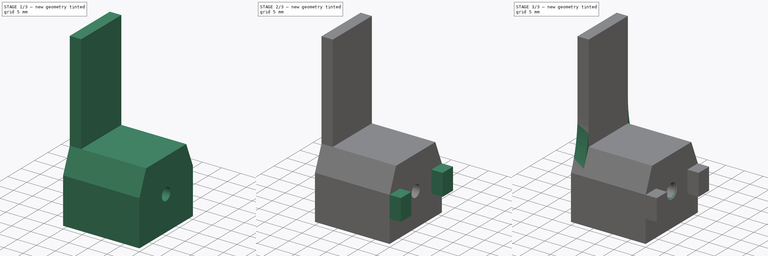
[diagram: build sequence overview — one tinted view per stage of 3, left to right]
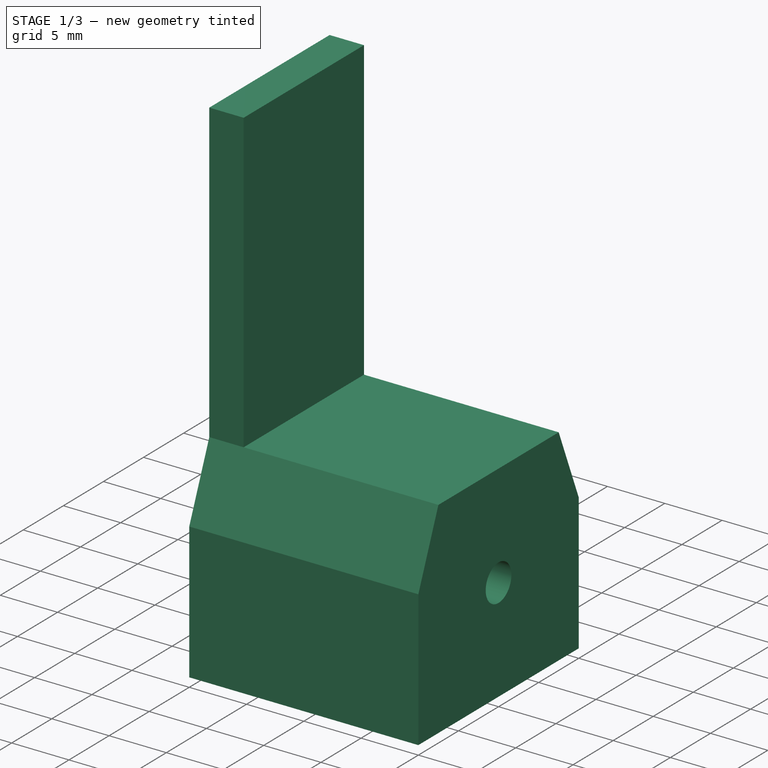
[diagram: stage 1 of 3 — iso view after this stage's code; geometry added in this stage tinted green]
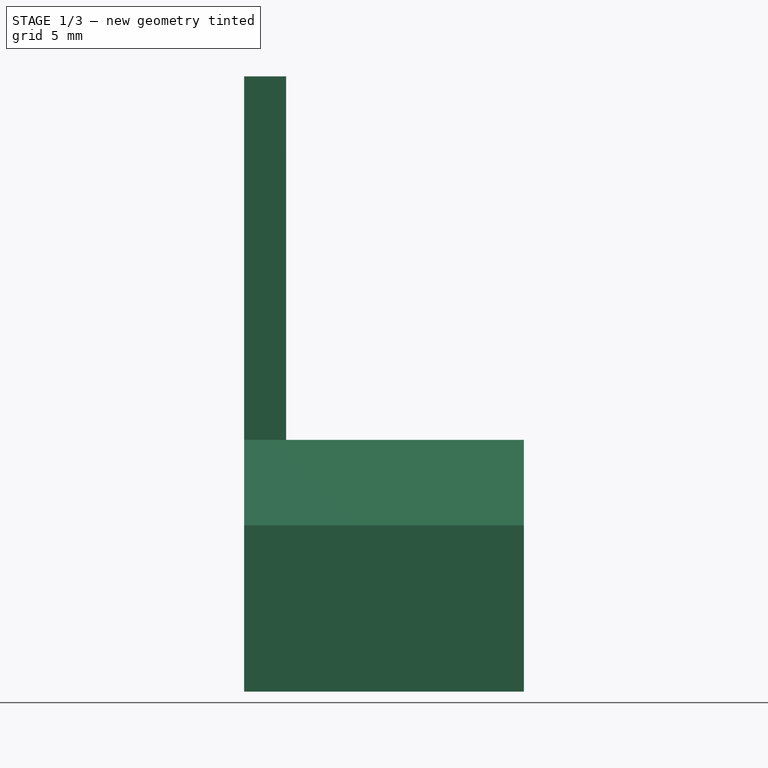
[diagram: stage 1 of 3 — front view after this stage's code; geometry added in this stage tinted green]
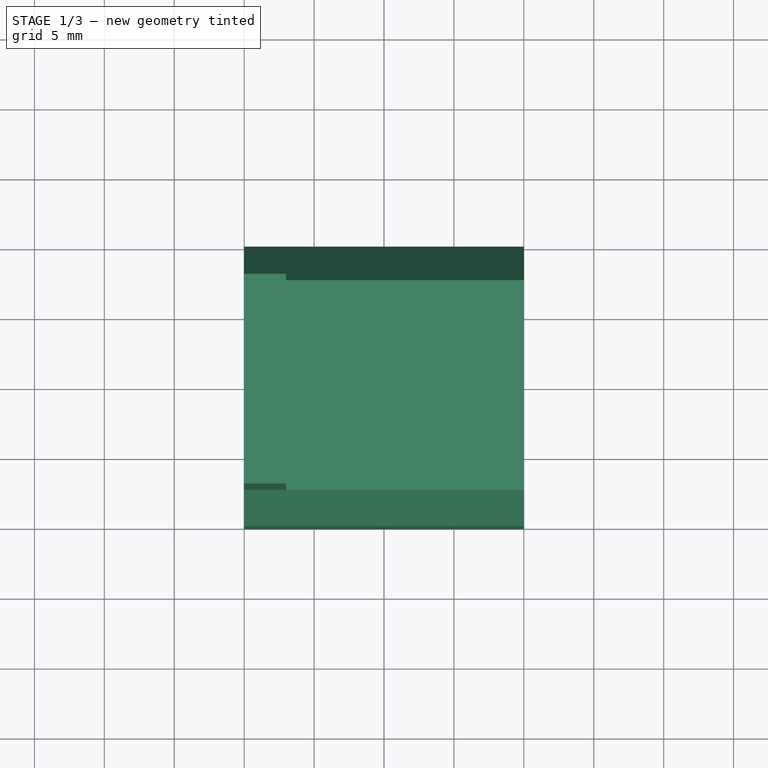
[diagram: stage 1 of 3 — top view after this stage's code; geometry added in this stage tinted green]
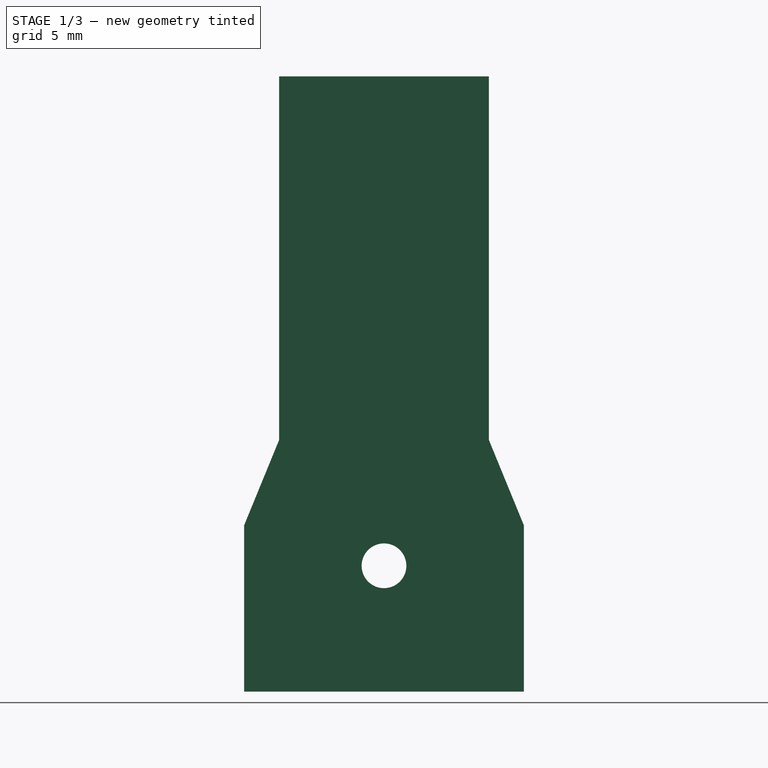
[diagram: stage 1 of 3 — right view after this stage's code; geometry added in this stage tinted green]
FCSTD DOCUMENT  (FreeCAD 0.22R38314 (Git))
Label: Voron_SpringPlate_Back
License: All rights reserved
LicenseURL: https://en.wikipedia.org/wiki/All_rights_reserved
objects: PartDesign::Pad×3, Sketcher::SketchObject×1, PartDesign::Fillet×1, PartDesign::Chamfer×1, PartDesign::Body×1
note: 17 computed .brp shape members not serialized (recipe doc carries the construction recipe); baked Part::Feature solids carry a one-line shape summary decoded from their .brp

FEATURE [Sketcher::SketchObject] Sketch
  AttachmentSupport = -> [YZ_Plane]
  FullyConstrained = true
  MapMode = 5
  Placement = pos=(0,0,0) rot=(0.57735,0.57735,0.57735;2.0944rad)
  sketch-geometry (21):
    g0: Circle CenterX=0 CenterY=0 CenterZ=0 NormalX=0 NormalY=0 NormalZ=1 AngleXU=0 Radius=1.6
    g1: LineSegment StartX=-10 StartY=-9 StartZ=0 EndX=0 EndY=-9 EndZ=0
    g2: LineSegment StartX=0 StartY=-9 StartZ=0 EndX=10 EndY=-9 EndZ=0
    g3: LineSegment StartX=-10 StartY=-9 StartZ=0 EndX=-10 EndY=-2.9 EndZ=0
    g4: LineSegment StartX=-7.5 StartY=9 StartZ=0 EndX=-7.5 EndY=35 EndZ=0
    g5: LineSegment StartX=7.5 StartY=35 StartZ=0 EndX=7.5 EndY=9 EndZ=0
    g6: LineSegment StartX=10 StartY=-2.9 StartZ=0 EndX=10 EndY=-9 EndZ=0
    g7: LineSegment StartX=7.5 StartY=35 StartZ=0 EndX=0 EndY=35 EndZ=0
    g8: LineSegment StartX=0 StartY=35 StartZ=0 EndX=-7.5 EndY=35 EndZ=0
    g9: LineSegment StartX=10 StartY=-2.9 StartZ=0 EndX=6 EndY=-2.9 EndZ=0
    g10: LineSegment StartX=6 StartY=-2.9 StartZ=0 EndX=6 EndY=0 EndZ=0
    g11: LineSegment StartX=6 StartY=0 StartZ=0 EndX=6 EndY=2.9 EndZ=0
    g12: LineSegment StartX=6 StartY=2.9 StartZ=0 EndX=10 EndY=2.9 EndZ=0
    g13: LineSegment StartX=10 StartY=2.9 StartZ=0 EndX=10 EndY=-2.9 EndZ=0
    g14: LineSegment StartX=10 StartY=2.9 StartZ=0 EndX=7.5 EndY=9 EndZ=0
    g15: LineSegment StartX=-10 StartY=-2.9 StartZ=0 EndX=-6 EndY=-2.9 EndZ=0
    g16: LineSegment StartX=-6 StartY=-2.9 StartZ=0 EndX=-6 EndY=2.9 EndZ=0
    g17: LineSegment StartX=-6 StartY=2.9 StartZ=0 EndX=-10 EndY=2.9 EndZ=0
    g18: LineSegment StartX=-10 StartY=2.9 StartZ=0 EndX=-7.5 EndY=9 EndZ=0
    g19: LineSegment StartX=-10 StartY=2.9 StartZ=0 EndX=-10 EndY=-2.9 EndZ=0
    g20: LineSegment StartX=-7.5 StartY=9 StartZ=0 EndX=7.5 EndY=9 EndZ=0
  constraints (59):
    c: Coincident(g0,g-1)
    c: Diameter(g0) = 3.2
    c: DistanceX(g1,g2) = 20
    c: Horizontal(g1)
    c: Coincident(g2,g1)
    c: Horizontal(g2)
    c: Equal(g1,g2)
    c: PointOnObject(g1,g-2)
    c: DistanceY(g2,g5) = 44
    c: DistanceY(g1,g0) = 9
    c: Coincident(g3,g1)
    c: Vertical(g3)
    c: Vertical(g4)
    c: Vertical(g5)
    c: Coincident(g6,g2)
    c: Vertical(g6)
    c: Distance(g5,g4) = 15
    c: Coincident(g7,g5)
    c: Horizontal(g7)
    c: Coincident(g8,g7)
    c: Coincident(g8,g4)
    c: Horizontal(g8)
    c: Equal(g8,g7)
    c: PointOnObject(g7,g-2)
    c: Horizontal(g4,g5)
    c: Horizontal(g3,g6)
    c: Coincident(g9,g6)
    c: Horizontal(g9)
    c: Coincident(g10,g9)
    c: PointOnObject(g10,g-1)
    c: Vertical(g10)
    c: Coincident(g11,g10)
    c: Vertical(g11)
    c: Coincident(g12,g11)
    c: Horizontal(g12)
    c: Coincident(g13,g12)
    c: Coincident(g13,g6)
    c: Vertical(g13)
    c: Coincident(g14,g12)
    c: Coincident(g14,g5)
    c: Equal(g10,g11)
    c: DistanceY(g6,g12) = 5.8
    c: Coincident(g15,g3)
    c: Horizontal(g15)
    c: Coincident(g16,g15)
    c: Vertical(g16)
    c: Horizontal(g17)
    c: Coincident(g18,g17)
    c: Coincident(g18,g4)
    c: Coincident(g19,g17)
    c: Coincident(g19,g3)
    c: Vertical(g19)
    c: Coincident(g16,g17)
    c: DistanceX(g15,g15) = 4
    c: Equal(g9,g15)
    c: Horizontal(g16,g11)
    c: DistanceY(g1,g4) = 18
    c: Coincident(g20,g4)
    c: Coincident(g20,g5)
FEATURE [PartDesign::Pad] Pad
  Direction = (1,0,0)
  Length = 3
  Length2 = 10
  Placement = pos=(0,0,0) rot=(1,1,1;2.0944rad)
  Profile = -> Sketch [Edge9,Vertex8,Edge7,Edge6,Edge2,Edge20,Edge19,Edge18,Edge17,Edge16,Edge15,Edge10,Edge8,Edge1]
  ReferenceAxis = -> Sketch [N_Axis]
  Refine = true
  Suppressed = false
  Type = 0
FEATURE [PartDesign::Pad] Pad001
  BaseFeature = -> Pad
  Direction = (1,0,0)
  Length = 20
  Length2 = 10
  Placement = pos=(0,0,0) rot=(1,1,1;2.0944rad)
  Profile = -> Sketch [Edge8,Edge7,Edge6,Edge2,Edge21,Edge16,Edge15,Edge10,Edge9,Edge1]
  ReferenceAxis = -> Sketch [N_Axis]
  Refine = true
  Suppressed = false
  Type = 0
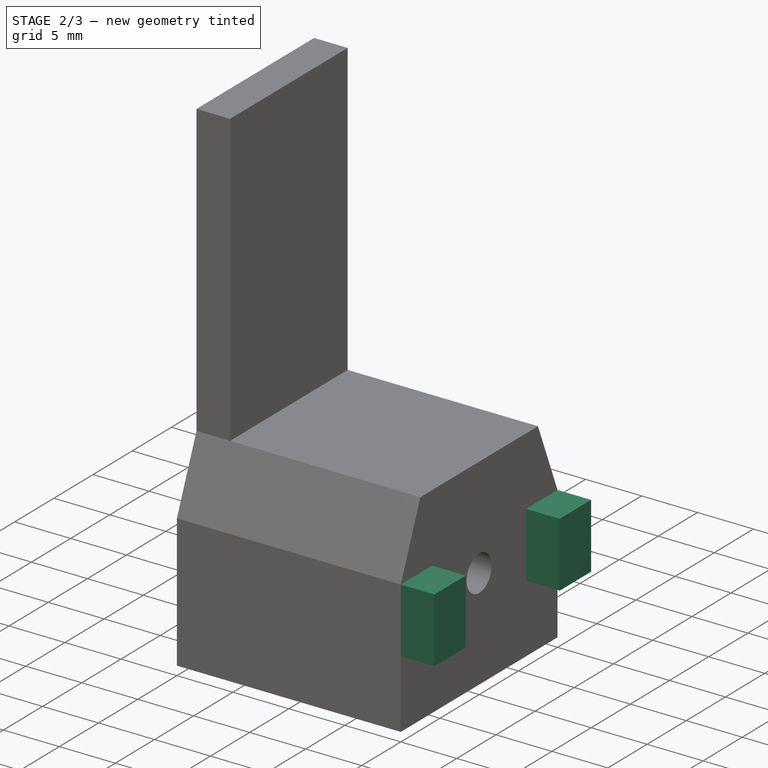
[diagram: stage 2 of 3 — iso view after this stage's code; geometry added in this stage tinted green]
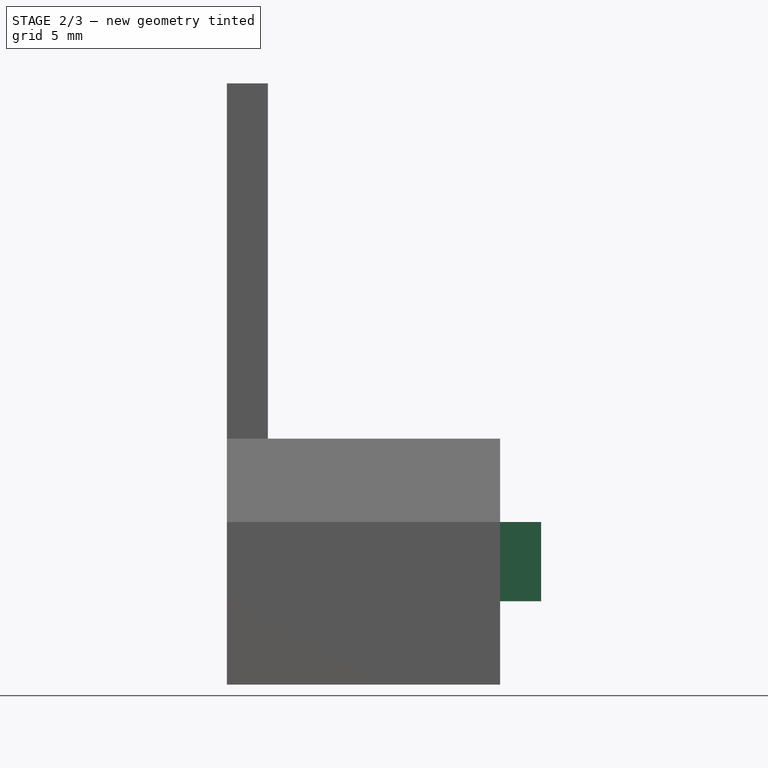
[diagram: stage 2 of 3 — front view after this stage's code; geometry added in this stage tinted green]
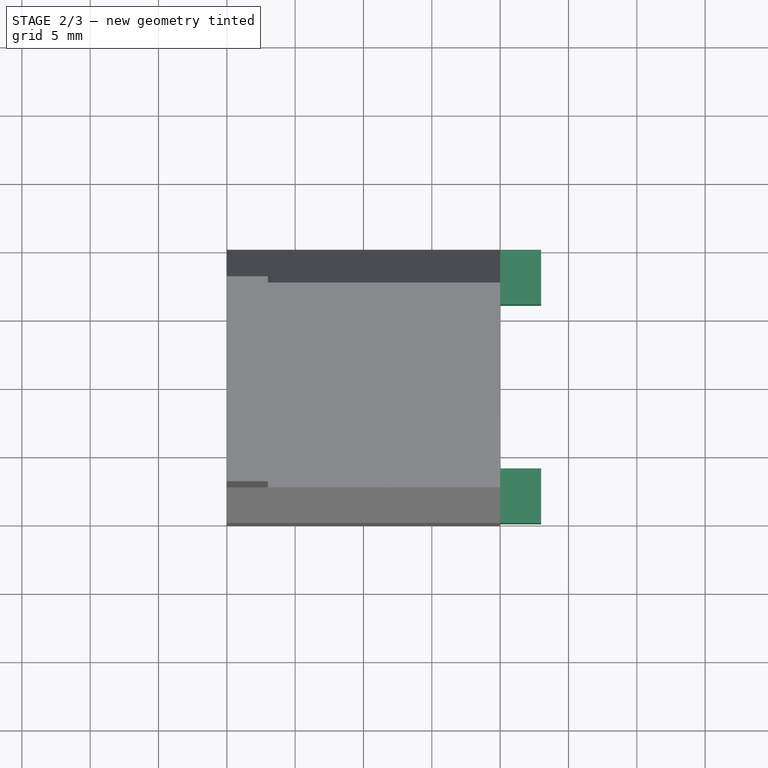
[diagram: stage 2 of 3 — top view after this stage's code; geometry added in this stage tinted green]
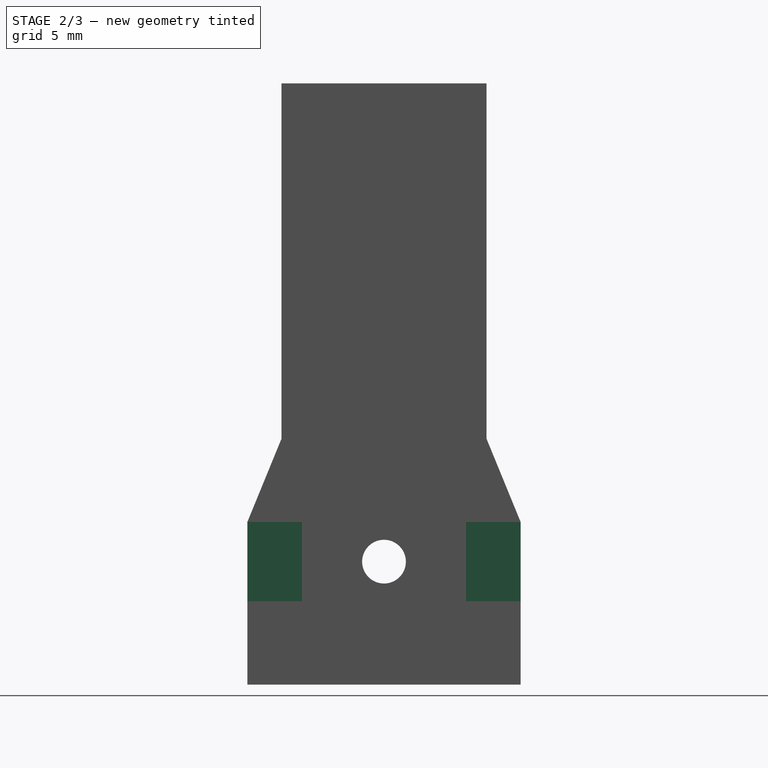
[diagram: stage 2 of 3 — right view after this stage's code; geometry added in this stage tinted green]
FEATURE [PartDesign::Pad] Pad002
  BaseFeature = -> Pad001
  Direction = (1,0,0)
  Length = 23
  Length2 = 10
  Placement = pos=(0,0,0) rot=(1,1,1;2.0944rad)
  Profile = -> Sketch [Edge11,Edge15,Edge14,Edge13,Edge12,Edge3,Edge4,Edge5,Edge6]
  ReferenceAxis = -> Sketch [N_Axis]
  Refine = true
  Suppressed = false
  Type = 0
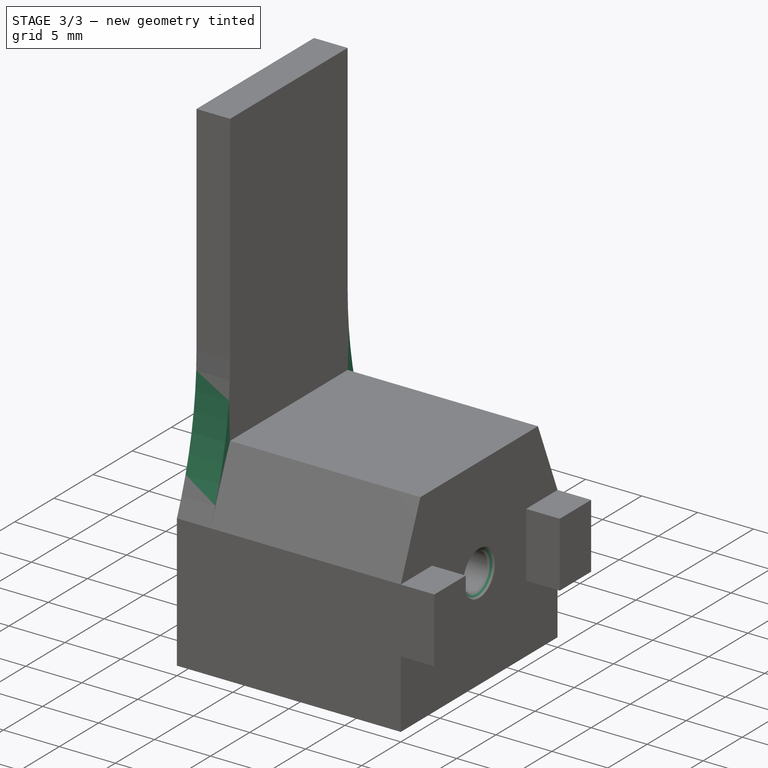
[diagram: stage 3 of 3 — iso view after this stage's code; geometry added in this stage tinted green]
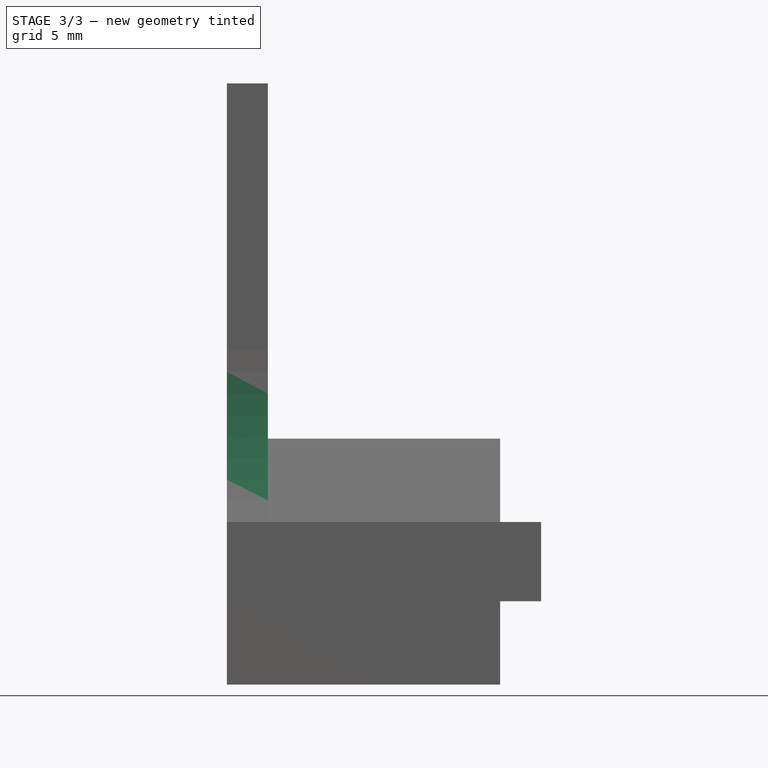
[diagram: stage 3 of 3 — front view after this stage's code; geometry added in this stage tinted green]
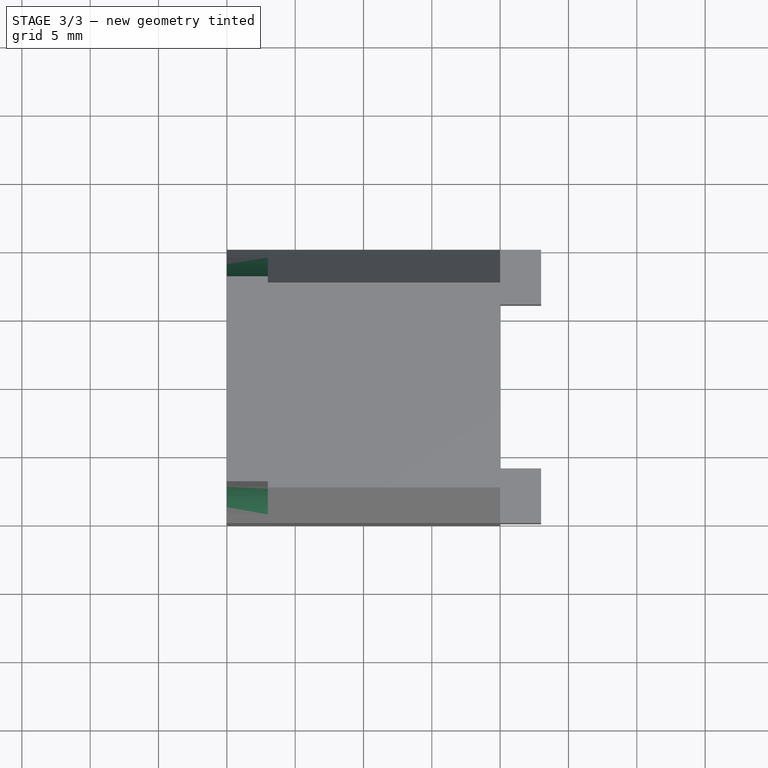
[diagram: stage 3 of 3 — top view after this stage's code; geometry added in this stage tinted green]
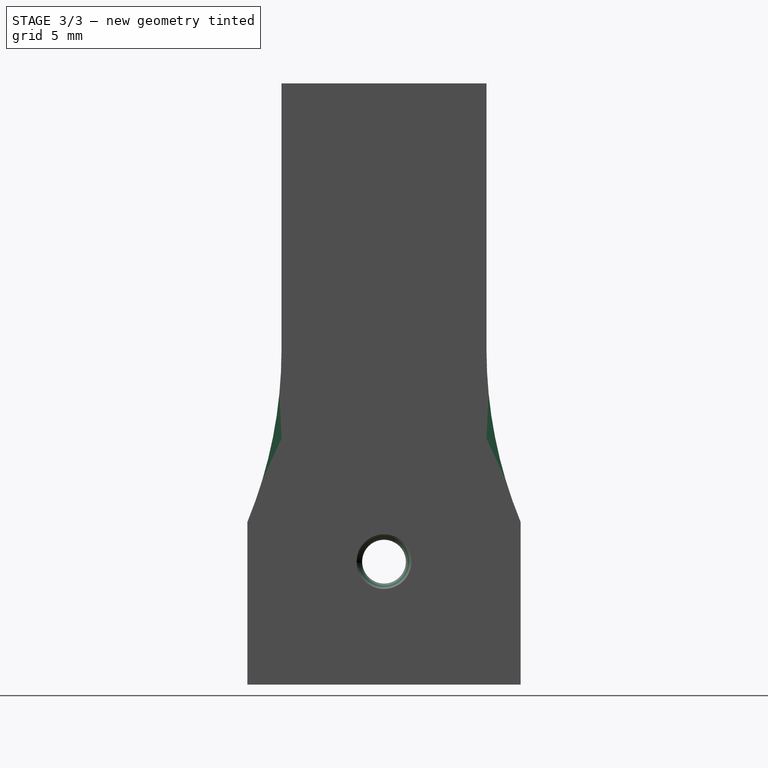
[diagram: stage 3 of 3 — right view after this stage's code; geometry added in this stage tinted green]
FEATURE [PartDesign::Fillet] Fillet
  Base = -> Pad002 [Edge2,Edge14]
  BaseFeature = -> Pad002
  Placement = pos=(0,0,0) rot=(1,1,1;2.0944rad)
  Radius = 33
  Refine = true
  SupportTransform = false
  Suppressed = false
  UseAllEdges = false
FEATURE [PartDesign::Chamfer] Chamfer
  Angle = 45
  Base = -> Fillet [Edge43,Edge14]
  BaseFeature = -> Fillet
  ChamferType = 0
  FlipDirection = false
  Placement = pos=(0,0,0) rot=(1,1,1;2.0944rad)
  Refine = true
  Size = 0.4
  Size2 = 1
  SupportTransform = false
  Suppressed = false
  UseAllEdges = false
FEATURE [PartDesign::Body] Body
  AllowCompound = false
  Group = -> [Sketch,Pad,Pad001,Pad002,Fillet,Chamfer]
  Origin = -> Origin
  Tip = -> Chamfer
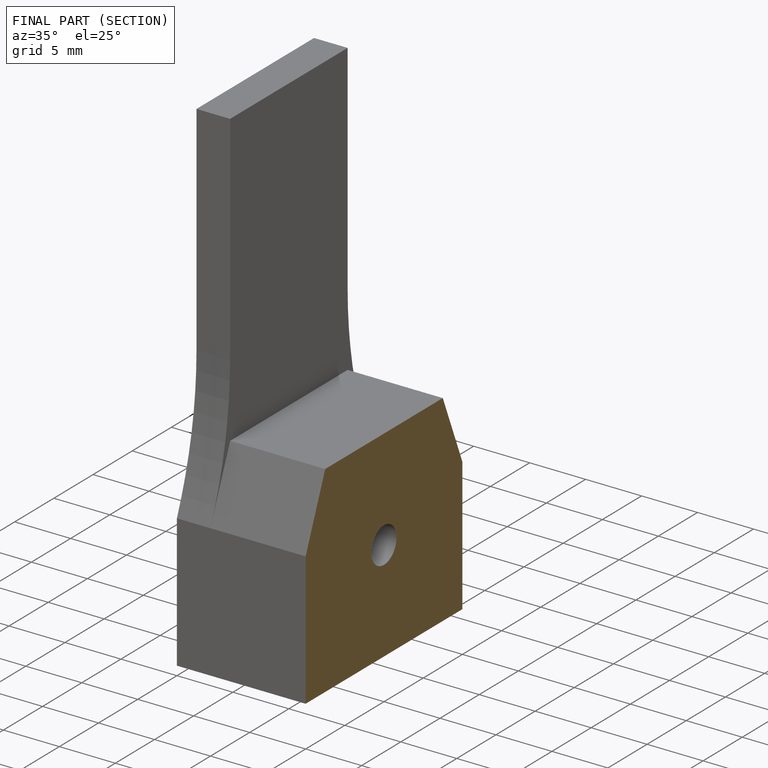
[diagram: finished part — half-section view (interior)]
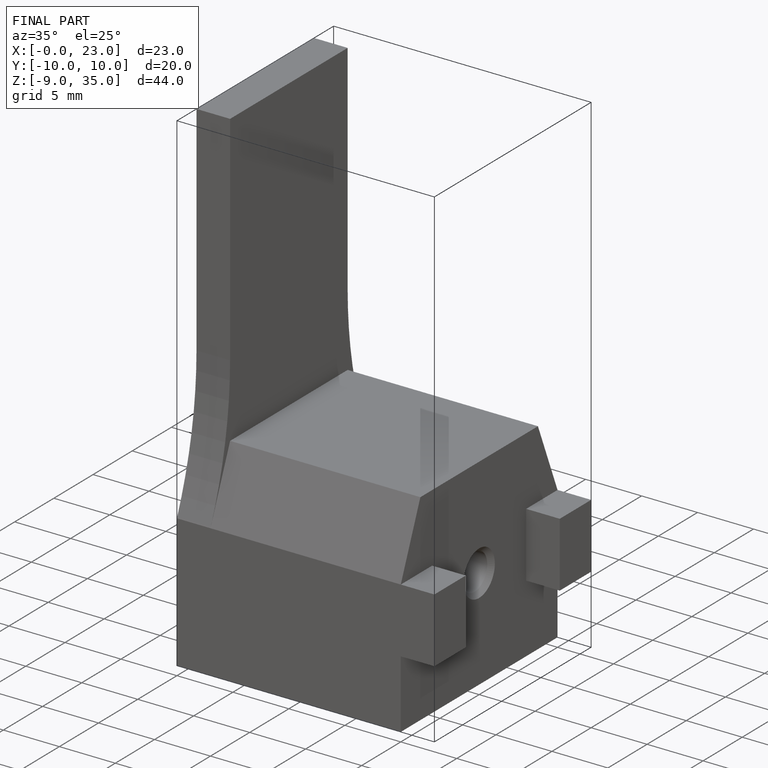
[diagram: finished part — iso view with bounding-box wireframe]
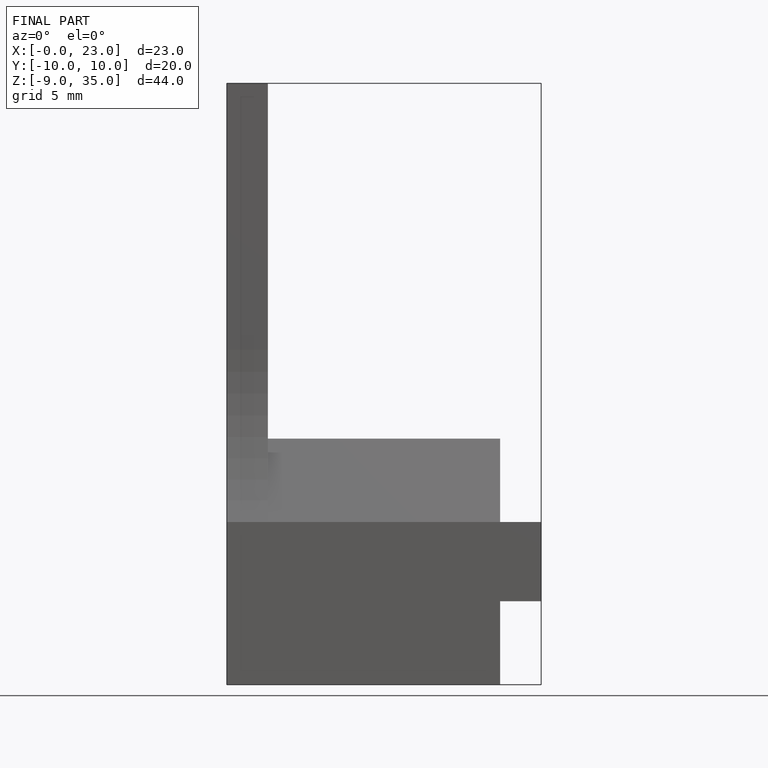
[diagram: finished part — front view with bounding-box wireframe]
